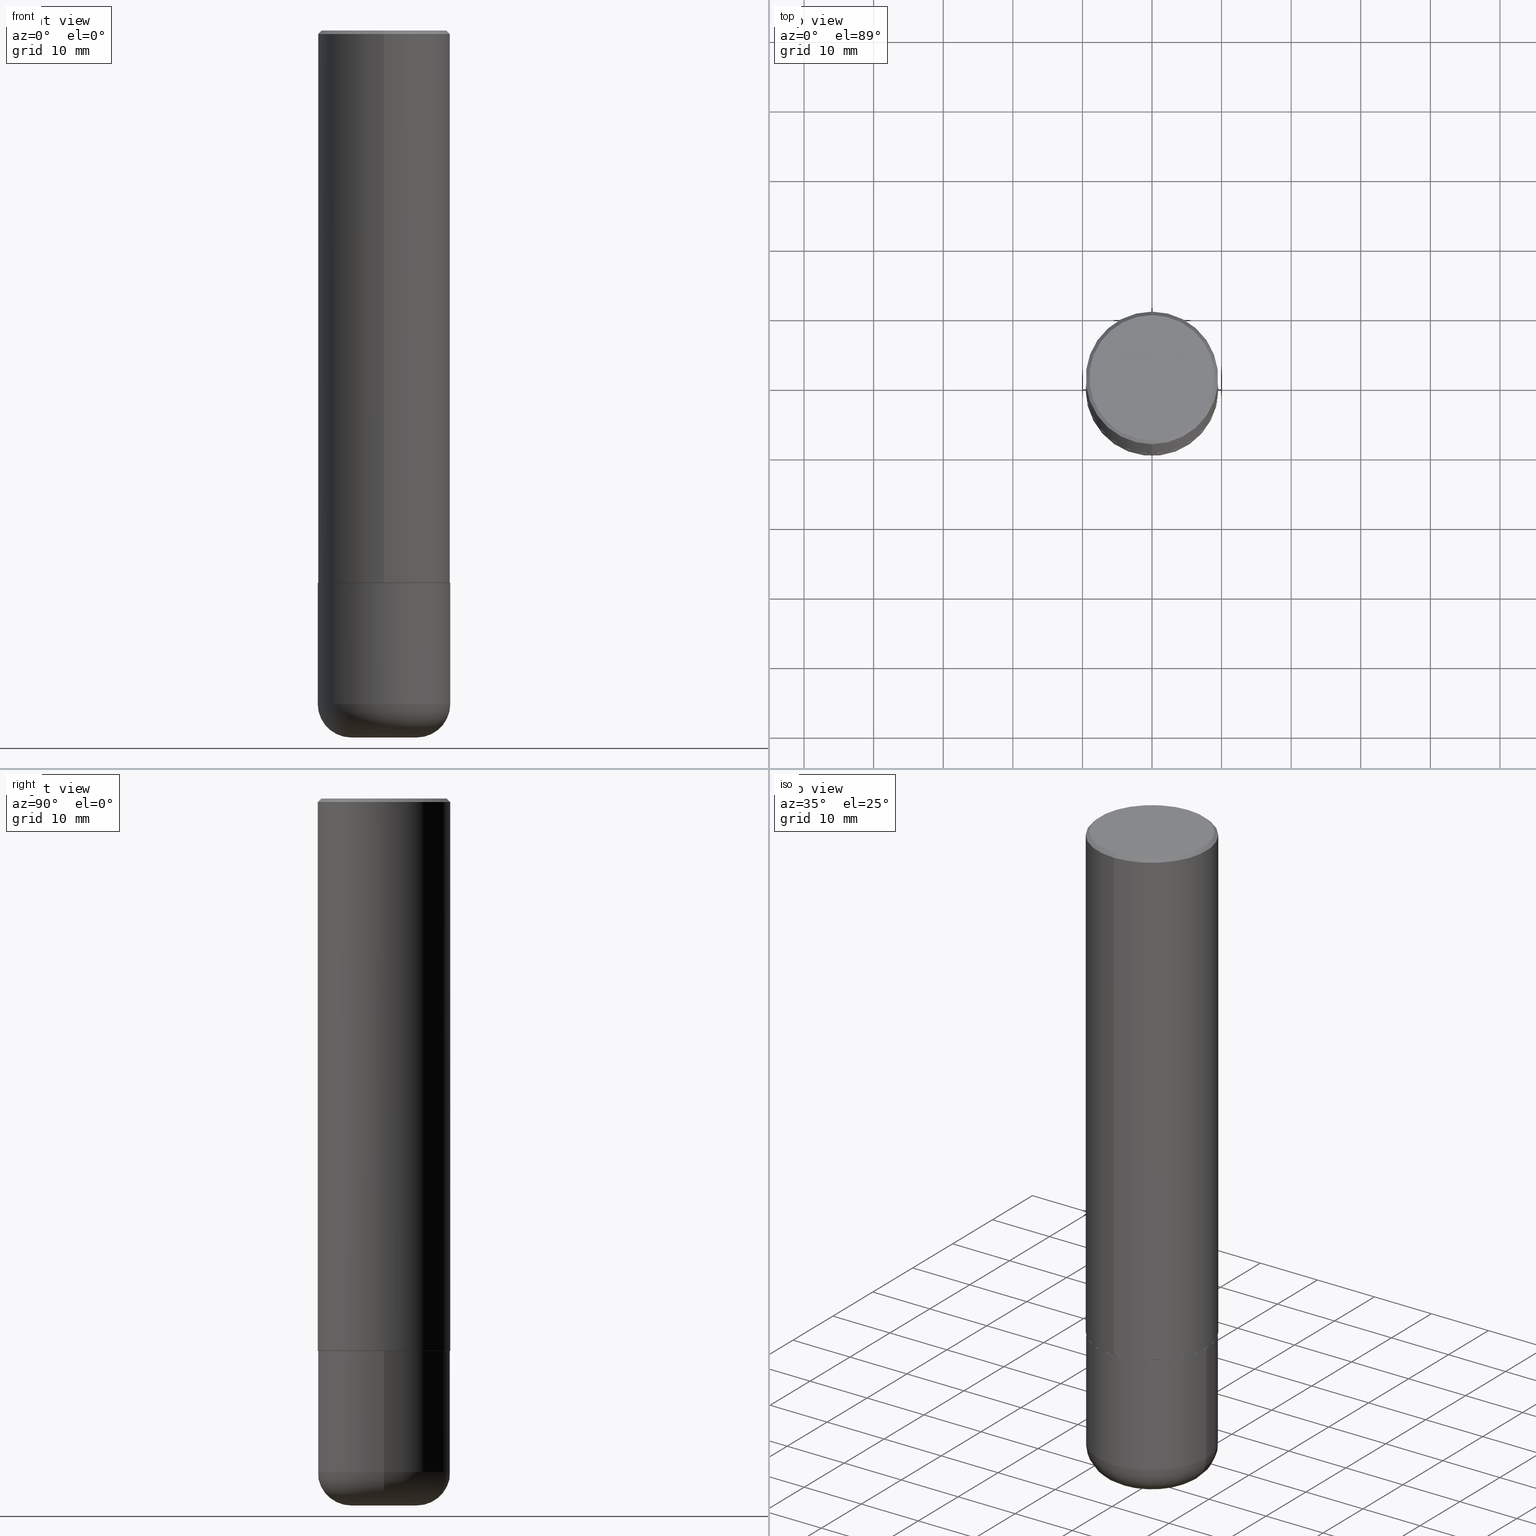
[diagram: canonical four-view strip — front | top / right | iso, engineering-drawing reading convention]
A machine part, canonical four-view strip (front | top / right | iso — engineering-drawing reading convention). The complete STEP part file that produces these views, byte-faithful:
ISO-10303-21;
HEADER;
FILE_DESCRIPTION (( 'STEP AP203' ),
    '1' );
FILE_NAME ('37279.STEP',
    '2024-03-01T23:01:05',
    ( '' ),
    ( '' ),
    'SwSTEP 2.0',
    'SolidWorks 2023',
    '' );
FILE_SCHEMA (( 'CONFIG_CONTROL_DESIGN' ));
ENDSEC;

DATA;
#1 = ORIENTED_EDGE ( 'NONE', *, *, #171, .F. ) ;
#2 = CONICAL_SURFACE ( 'NONE', #184, 0.3749999999999999445, 0.7853981633974477239 ) ;
#3 = DIRECTION ( 'NONE',  ( -2.445996322747269804E-29, 3.490725905101792415E-15, 1.000000000000000000 ) ) ;
#4 = PRODUCT_DEFINITION ( 'UNKNOWN', '', #301, #335 ) ;
#5 = CARTESIAN_POINT ( 'NONE',  ( 0.1850000000000000533, -1.459439199636434413E-14, -3.810000000000000053 ) ) ;
#6 = AXIS2_PLACEMENT_3D ( 'NONE', #102, #212, #210 ) ;
#7 = ADVANCED_FACE ( 'NONE', ( #255 ), #141, .T. ) ;
#8 = DIRECTION ( 'NONE',  ( -2.445468806185136597E-29, 3.491481338843145583E-15, 1.000000000000000000 ) ) ;
#9 = APPROVAL ( #251, 'UNSPECIFIED' ) ;
#10 = CARTESIAN_POINT ( 'NONE',  ( 9.317236151565370389E-29, -1.330254390099238573E-14, -3.810000000000000053 ) ) ;
#11 = MANIFOLD_SOLID_BREP ( 'Body-Move/Copy2[2]', #77 ) ;
#12 = ORIENTED_EDGE ( 'NONE', *, *, #313, .T. ) ;
#13 = AXIS2_PLACEMENT_3D ( 'NONE', #50, #174, #233 ) ;
#14 = CIRCLE ( 'NONE', #241, 0.3750000000000003886 ) ;
#15 = FACE_OUTER_BOUND ( 'NONE', #168, .T. ) ;
#16 = EDGE_CURVE ( 'NONE', #32, #369, #237, .T. ) ;
#17 = DIRECTION ( 'NONE',  ( -2.445996322747269804E-29, 3.490725905101792415E-15, 1.000000000000000000 ) ) ;
#18 = PERSON_AND_ORGANIZATION ( #73, #169 ) ;
#19 = PLANE ( 'NONE',  #122 ) ;
#20 = DIRECTION ( 'NONE',  ( 2.445996322747269804E-29, -3.490725905101792415E-15, -1.000000000000000000 ) ) ;
#21 = AXIS2_PLACEMENT_3D ( 'NONE', #341, #401, #298 ) ;
#22 = APPROVAL_PERSON_ORGANIZATION ( #18, #250, #187 ) ;
#23 = ADVANCED_FACE ( 'NONE', ( #170 ), #113, .T. ) ;
#24 = ORIENTED_EDGE ( 'NONE', *, *, #343, .T. ) ;
#25 = SECURITY_CLASSIFICATION_LEVEL ( 'unclassified' ) ;
#26 = FACE_OUTER_BOUND ( 'NONE', #152, .T. ) ;
#27 = CC_DESIGN_PERSON_AND_ORGANIZATION_ASSIGNMENT ( #120, #209, ( #301 ) ) ;
#28 = VERTEX_POINT ( 'NONE', #86 ) ;
#29 = CARTESIAN_POINT ( 'NONE',  ( 0.000000000000000000, 0.000000000000000000, 0.000000000000000000 ) ) ;
#30 = CARTESIAN_POINT ( 'NONE',  ( 7.642090019328551865E-29, -1.091087918388483118E-14, -3.125000000000000000 ) ) ;
#31 = AXIS2_PLACEMENT_3D ( 'NONE', #143, #231, #396 ) ;
#32 = VERTEX_POINT ( 'NONE', #268 ) ;
#33 = CIRCLE ( 'NONE', #271, 0.3750000000000000555 ) ;
#34 = EDGE_CURVE ( 'NONE', #28, #208, #215, .T. ) ;
#35 = PLANE ( 'NONE',  #116 ) ;
#36 = ORIENTED_EDGE ( 'NONE', *, *, #82, .F. ) ;
#37 = CARTESIAN_POINT ( 'NONE',  ( 7.643738508585217927E-29, -1.090851845344310125E-14, -3.125000000000000000 ) ) ;
#38 = EDGE_LOOP ( 'NONE', ( #386, #246, #1, #181 ) ) ;
#39 = DIRECTION ( 'NONE',  ( 4.937700262164544887E-15, 0.7071067811865446862, -0.7071067811865503483 ) ) ;
#40 = AXIS2_PLACEMENT_3D ( 'NONE', #288, #331, #161 ) ;
#41 = DIRECTION ( 'NONE',  ( 2.445996322747270084E-29, -3.490725905101792021E-15, -1.000000000000000000 ) ) ;
#42 = ORIENTED_EDGE ( 'NONE', *, *, #262, .T. ) ;
#43 = AXIS2_PLACEMENT_3D ( 'NONE', #387, #239, #189 ) ;
#44 = AXIS2_PLACEMENT_3D ( 'NONE', #118, #218, #376 ) ;
#45 = LOCAL_TIME ( 18, 1, 5.000000000000000000, #75 ) ;
#46 = EDGE_LOOP ( 'NONE', ( #172, #160, #322, #155 ) ) ;
#47 = DIRECTION ( 'NONE',  ( -2.445996322747269804E-29, 3.490725905101792415E-15, 1.000000000000000000 ) ) ;
#48 = ADVANCED_FACE ( 'NONE', ( #229 ), #93, .T. ) ;
#49 = VECTOR ( 'NONE', #39, 39.37007874015748143 ) ;
#50 = CARTESIAN_POINT ( 'NONE',  ( 9.781875224740546387E-29, -1.396592535537258233E-14, -4.000000000000000000 ) ) ;
#51 = CC_DESIGN_PERSON_AND_ORGANIZATION_ASSIGNMENT ( #375, #340, ( #413 ) ) ;
#52 = COORDINATED_UNIVERSAL_TIME_OFFSET ( 5, 0, .BEHIND. ) ;
#53 = DIRECTION ( 'NONE',  ( -4.937700262165896205E-15, -0.7071067811867381980, 0.7071067811863568364 ) ) ;
#54 = ORIENTED_EDGE ( 'NONE', *, *, #330, .F. ) ;
#55 = PERSON_AND_ORGANIZATION_ROLE ( 'design_supplier' ) ;
#56 = CARTESIAN_POINT ( 'NONE',  ( 7.642090019328551865E-29, -1.091087918388483118E-14, -3.125000000000000000 ) ) ;
#57 = COORDINATED_UNIVERSAL_TIME_OFFSET ( 5, 0, .BEHIND. ) ;
#58 = CARTESIAN_POINT ( 'NONE',  ( 2.664535259100376486E-15, 0.3750000000000001665, -1.309022214413172797E-15 ) ) ;
#59 = AXIS2_PLACEMENT_3D ( 'NONE', #10, #140, #263 ) ;
#60 = CALENDAR_DATE ( 2024, 1, 3 ) ;
#61 = ORIENTED_EDGE ( 'NONE', *, *, #205, .F. ) ;
#62 = DIRECTION ( 'NONE',  ( 0.000000000000000000, 0.000000000000000000, 1.000000000000000000 ) ) ;
#63 = DIRECTION ( 'NONE',  ( -2.445468806185136877E-29, 3.491481338843145188E-15, 1.000000000000000000 ) ) ;
#64 = ORIENTED_EDGE ( 'NONE', *, *, #171, .T. ) ;
#65 = ADVANCED_FACE ( 'NONE', ( #15 ), #247, .T. ) ;
#66 = CARTESIAN_POINT ( 'NONE',  ( -2.504081769186606638E-15, -0.3549999999999995381, 1.580420516540987376E-15 ) ) ;
#67 = LINE ( 'NONE', #124, #183 ) ;
#68 = ORIENTED_EDGE ( 'NONE', *, *, #248, .F. ) ;
#69 = APPROVAL_DATE_TIME ( #352, #9 ) ;
#70 = CC_DESIGN_PERSON_AND_ORGANIZATION_ASSIGNMENT ( #214, #179, ( #367 ) ) ;
#71 = CYLINDRICAL_SURFACE ( 'NONE', #142, 0.3750000000000001665 ) ;
#72 = EDGE_LOOP ( 'NONE', ( #417, #224, #383, #186 ) ) ;
#73 = PERSON ( 'UNSPECIFIED', 'UNSPECIFIED', 'UNSPECIFIED', ('UNSPECIFIED'), ('UNSPECIFIED'), ('UNSPECIFIED') ) ;
#74 = EDGE_CURVE ( 'NONE', #346, #149, #353, .T. ) ;
#75 = COORDINATED_UNIVERSAL_TIME_OFFSET ( 5, 0, .BEHIND. ) ;
#76 = DIRECTION ( 'NONE',  ( -6.982962677686266711E-15, -1.000000000000000000, 3.491481338843145583E-15 ) ) ;
#77 = CLOSED_SHELL ( 'NONE', ( #361, #399, #232, #294, #103, #23, #139, #373 ) ) ;
#78 = UNCERTAINTY_MEASURE_WITH_UNIT (LENGTH_MEASURE( 1.000000000000000082E-05 ), #323, 'distance_accuracy_value', 'NONE');
#79 = CARTESIAN_POINT ( 'NONE',  ( 7.643738508585217927E-29, -1.090851845344310125E-14, -3.125000000000000000 ) ) ;
#80 = DIMENSIONAL_EXPONENTS ( 1.000000000000000000, 0.000000000000000000, 0.000000000000000000, 0.000000000000000000, 0.000000000000000000, 0.000000000000000000, 0.000000000000000000 ) ;
#81 = DIRECTION ( 'NONE',  ( -2.445996322747269804E-29, 3.490725905101792415E-15, 1.000000000000000000 ) ) ;
#82 = EDGE_CURVE ( 'NONE', #400, #312, #414, .T. ) ;
#83 = AXIS2_PLACEMENT_3D ( 'NONE', #407, #311, #121 ) ;
#84 = LOCAL_TIME ( 18, 1, 5.000000000000000000, #276 ) ;
#85 = CC_DESIGN_PERSON_AND_ORGANIZATION_ASSIGNMENT ( #381, #55, ( #301 ) ) ;
#86 = CARTESIAN_POINT ( 'NONE',  ( 2.618611004132350016E-15, 0.3749999999999998890, -0.02000000000000139513 ) ) ;
#87 = CYLINDRICAL_SURFACE ( 'NONE', #316, 0.3750000000000001665 ) ;
#88 = CIRCLE ( 'NONE', #13, 0.1850000000000000810 ) ;
#89 = CIRCLE ( 'NONE', #40, 0.1899999999999999190 ) ;
#90 = CARTESIAN_POINT ( 'NONE',  ( -2.618611004132351200E-15, -0.3750000000000001665, 1.309022214413172797E-15 ) ) ;
#91 = ORIENTED_EDGE ( 'NONE', *, *, #281, .F. ) ;
#92 = DIRECTION ( 'NONE',  ( -6.982962677686266711E-15, -1.000000000000000000, 3.490725905101792415E-15 ) ) ;
#93 = CYLINDRICAL_SURFACE ( 'NONE', #327, 0.3750000000000001110 ) ;
#94 = CALENDAR_DATE ( 2024, 1, 3 ) ;
#95 = CARTESIAN_POINT ( 'NONE',  ( 2.664535259100415534E-15, 0.3749999999999894529, -3.124000000000001442 ) ) ;
#96 = VERTEX_POINT ( 'NONE', #115 ) ;
#97 = DATE_AND_TIME ( #182, #129 ) ;
#98 = DIRECTION ( 'NONE',  ( -6.982962677686265922E-15, -1.000000000000000000, 3.490725905101792021E-15 ) ) ;
#99 = AXIS2_PLACEMENT_3D ( 'NONE', #302, #17, #264 ) ;
#100 = ORIENTED_EDGE ( 'NONE', *, *, #334, .F. ) ;
#101 = MECHANICAL_CONTEXT ( 'NONE', #320, 'mechanical' ) ;
#102 = CARTESIAN_POINT ( 'NONE',  ( 9.317236151565370389E-29, -1.330254390099238573E-14, -3.810000000000000053 ) ) ;
#103 = ADVANCED_FACE ( 'NONE', ( #259 ), #87, .T. ) ;
#104 = PERSON_AND_ORGANIZATION_ROLE ( 'creator' ) ;
#105 = DIRECTION ( 'NONE',  ( 1.000000000000000000, -6.982962677686266711E-15, 0.000000000000000000 ) ) ;
#106 = ORIENTED_EDGE ( 'NONE', *, *, #110, .F. ) ;
#107 = FACE_OUTER_BOUND ( 'NONE', #310, .T. ) ;
#108 = CC_DESIGN_SECURITY_CLASSIFICATION ( #367, ( #301 ) ) ;
#109 = ORIENTED_EDGE ( 'NONE', *, *, #258, .F. ) ;
#110 = EDGE_CURVE ( 'NONE', #149, #346, #88, .T. ) ;
#111 = DIRECTION ( 'NONE',  ( -6.982962677686266711E-15, -1.000000000000000000, 2.921762560068730595E-15 ) ) ;
#112 = DIRECTION ( 'NONE',  ( -2.445996322747269804E-29, 3.490725905101792415E-15, 1.000000000000000000 ) ) ;
#113 = CONICAL_SURFACE ( 'NONE', #21, 0.3739999999999999991, 0.7853981633977213939 ) ;
#114 = AXIS2_PLACEMENT_3D ( 'NONE', #37, #165, #390 ) ;
#115 = CARTESIAN_POINT ( 'NONE',  ( 0.3750000000000000555, -1.592115490512473417E-14, -3.810000000000000053 ) ) ;
#116 = AXIS2_PLACEMENT_3D ( 'NONE', #344, #159, #191 ) ;
#117 = DATE_AND_TIME ( #94, #339 ) ;
#118 = CARTESIAN_POINT ( 'NONE',  ( 4.891992645494561398E-31, -6.981451810203614264E-17, -0.02000000000000008715 ) ) ;
#119 = ORIENTED_EDGE ( 'NONE', *, *, #365, .T. ) ;
#120 = PERSON_AND_ORGANIZATION ( #73, #169 ) ;
#121 = DIRECTION ( 'NONE',  ( -1.000000000000000000, 6.982962677686265922E-15, -4.876176775795935793E-29 ) ) ;
#122 = AXIS2_PLACEMENT_3D ( 'NONE', #145, #416, #98 ) ;
#123 = APPROVAL_PERSON_ORGANIZATION ( #130, #9, #219 ) ;
#124 = CARTESIAN_POINT ( 'NONE',  ( 0.3750000000000001110, -2.618611004132350411E-15, 1.828566290923476483E-29 ) ) ;
#125 = ORIENTED_EDGE ( 'NONE', *, *, #211, .T. ) ;
#126 = DIRECTION ( 'NONE',  ( 6.982962677686266711E-15, 1.000000000000000000, -3.494488891895537218E-15 ) ) ;
#127 = EDGE_CURVE ( 'NONE', #312, #400, #300, .T. ) ;
#128 = AXIS2_PLACEMENT_3D ( 'NONE', #29, #282, #154 ) ;
#129 = LOCAL_TIME ( 18, 1, 5.000000000000000000, #235 ) ;
#130 = PERSON_AND_ORGANIZATION ( #73, #169 ) ;
#131 = DIRECTION ( 'NONE',  ( 1.000000000000000000, -6.982962677686264344E-15, 0.000000000000000000 ) ) ;
#132 = DIRECTION ( 'NONE',  ( 2.445996322747269804E-29, -3.490725905101792415E-15, -1.000000000000000000 ) ) ;
#133 = EDGE_CURVE ( 'NONE', #369, #208, #371, .T. ) ;
#134 = ORIENTED_EDGE ( 'NONE', *, *, #164, .T. ) ;
#135 = VECTOR ( 'NONE', #350, 39.37007874015748143 ) ;
#136 = AXIS2_PLACEMENT_3D ( 'NONE', #197, #112, #111 ) ;
#137 = VERTEX_POINT ( 'NONE', #177 ) ;
#138 = DIRECTION ( 'NONE',  ( 1.000000000000000000, -6.982962677686265922E-15, 4.876176775795935793E-29 ) ) ;
#139 = ADVANCED_FACE ( 'NONE', ( #304 ), #19, .F. ) ;
#140 = DIRECTION ( 'NONE',  ( -2.445468806185136597E-29, 3.491481338843145583E-15, 1.000000000000000000 ) ) ;
#141 = TOROIDAL_SURFACE ( 'NONE', #59, 0.1850000000000000533, 0.1899999999999999467 ) ;
#142 = AXIS2_PLACEMENT_3D ( 'NONE', #285, #279, #92 ) ;
#143 = CARTESIAN_POINT ( 'NONE',  ( 9.317236151565370389E-29, -1.330254390099238573E-14, -3.810000000000000053 ) ) ;
#144 = APPROVAL_STATUS ( 'not_yet_approved' ) ;
#145 = CARTESIAN_POINT ( 'NONE',  ( 7.643738508585217927E-29, -1.090851845344310125E-14, -3.125000000000000000 ) ) ;
#146 = ADVANCED_FACE ( 'NONE', ( #216 ), #35, .F. ) ;
#147 = CARTESIAN_POINT ( 'NONE',  ( -0.3750000000000000555, -1.063800864189200846E-14, -3.810000000000000053 ) ) ;
#148 = APPROVAL ( #348, 'UNSPECIFIED' ) ;
#149 = VERTEX_POINT ( 'NONE', #188 ) ;
#150 = PERSON_AND_ORGANIZATION ( #73, #169 ) ;
#151 = FACE_OUTER_BOUND ( 'NONE', #38, .T. ) ;
#152 = EDGE_LOOP ( 'NONE', ( #308, #158, #119, #292 ) ) ;
#153 = APPROVAL_DATE_TIME ( #97, #250 ) ;
#154 = DIRECTION ( 'NONE',  ( 1.000000000000000000, -6.982962677686265922E-15, 4.876176775795935793E-29 ) ) ;
#155 = ORIENTED_EDGE ( 'NONE', *, *, #34, .F. ) ;
#156 = APPROVAL_ROLE ( '' ) ;
#157 = DIRECTION ( 'NONE',  ( -2.445468806185136597E-29, 3.491481338843145583E-15, 1.000000000000000000 ) ) ;
#158 = ORIENTED_EDGE ( 'NONE', *, *, #127, .F. ) ;
#159 = DIRECTION ( 'NONE',  ( 2.438088387897960049E-29, -3.491481338843145188E-15, -1.000000000000000000 ) ) ;
#160 = ORIENTED_EDGE ( 'NONE', *, *, #391, .T. ) ;
#161 = DIRECTION ( 'NONE',  ( -1.000000000000000000, 7.105427357601001070E-15, 0.000000000000000000 ) ) ;
#162 = ADVANCED_BREP_SHAPE_REPRESENTATION ( '37279', ( #290, #11, #404 ), #394 ) ;
#163 = DIRECTION ( 'NONE',  ( 6.982962677686265922E-15, 1.000000000000000000, -3.490725905101792021E-15 ) ) ;
#164 = EDGE_CURVE ( 'NONE', #400, #208, #385, .T. ) ;
#165 = DIRECTION ( 'NONE',  ( -2.445996322747269804E-29, 3.490725905101792415E-15, 1.000000000000000000 ) ) ;
#166 = EDGE_LOOP ( 'NONE', ( #36, #134, #200, #332 ) ) ;
#167 = FACE_OUTER_BOUND ( 'NONE', #190, .T. ) ;
#168 = EDGE_LOOP ( 'NONE', ( #408, #410, #24, #61 ) ) ;
#169 = ORGANIZATION ( 'UNSPECIFIED', 'UNSPECIFIED', '' ) ;
#170 = FACE_OUTER_BOUND ( 'NONE', #72, .T. ) ;
#171 = EDGE_CURVE ( 'NONE', #137, #234, #403, .T. ) ;
#172 = ORIENTED_EDGE ( 'NONE', *, *, #286, .F. ) ;
#173 = DIRECTION ( 'NONE',  ( 1.000000000000000000, -6.982962677686272233E-15, 0.000000000000000000 ) ) ;
#174 = DIRECTION ( 'NONE',  ( -2.445468806185136597E-29, 3.491481338843145583E-15, 1.000000000000000000 ) ) ;
#175 = DATE_AND_TIME ( #60, #347 ) ;
#176 = ADVANCED_FACE ( 'NONE', ( #349 ), #412, .T. ) ;
#177 = CARTESIAN_POINT ( 'NONE',  ( 0.3750000000000000555, -1.352949018801718119E-14, -3.125000000000000000 ) ) ;
#178 = VERTEX_POINT ( 'NONE', #382 ) ;
#179 = PERSON_AND_ORGANIZATION_ROLE ( 'classification_officer' ) ;
#180 = CARTESIAN_POINT ( 'NONE',  ( -2.572686749164323153E-15, -0.3750000000000000555, -0.01999999999999877570 ) ) ;
#181 = ORIENTED_EDGE ( 'NONE', *, *, #194, .F. ) ;
#182 = CALENDAR_DATE ( 2024, 1, 3 ) ;
#183 = VECTOR ( 'NONE', #63, 39.37007874015748143 ) ;
#184 = AXIS2_PLACEMENT_3D ( 'NONE', #242, #20, #126 ) ;
#185 = DIRECTION ( 'NONE',  ( -2.445996322747270084E-29, 3.490725905101792021E-15, 1.000000000000000000 ) ) ;
#186 = ORIENTED_EDGE ( 'NONE', *, *, #391, .F. ) ;
#187 = APPROVAL_ROLE ( '' ) ;
#188 = CARTESIAN_POINT ( 'NONE',  ( 0.1850000000000000810, -1.525777345074454388E-14, -4.000000000000000000 ) ) ;
#189 = DIRECTION ( 'NONE',  ( -6.982962677686265922E-15, -1.000000000000000000, 2.913971193241877611E-15 ) ) ;
#190 = EDGE_LOOP ( 'NONE', ( #228, #355 ) ) ;
#191 = DIRECTION ( 'NONE',  ( -1.000000000000000000, 6.982962677686265922E-15, -4.876176775795935793E-29 ) ) ;
#192 = VECTOR ( 'NONE', #314, 39.37007874015748143 ) ;
#193 = ORIENTED_EDGE ( 'NONE', *, *, #133, .F. ) ;
#194 = EDGE_CURVE ( 'NONE', #96, #137, #67, .T. ) ;
#195 = DIRECTION ( 'NONE',  ( -2.445468806185136877E-29, 3.491481338843145188E-15, 1.000000000000000000 ) ) ;
#196 = ORIENTED_EDGE ( 'NONE', *, *, #343, .F. ) ;
#197 = CARTESIAN_POINT ( 'NONE',  ( 7.643738508585217927E-29, -1.090851845344310125E-14, -3.125000000000000000 ) ) ;
#198 = CONICAL_SURFACE ( 'NONE', #136, 0.3739999999999999991, 0.7853981633977213939 ) ;
#199 = DIRECTION ( 'NONE',  ( -6.982962677686266711E-15, -1.000000000000000000, 2.921762560068730595E-15 ) ) ;
#200 = ORIENTED_EDGE ( 'NONE', *, *, #281, .T. ) ;
#201 = DIRECTION ( 'NONE',  ( -2.445468806185136597E-29, 3.491481338843145583E-15, 1.000000000000000000 ) ) ;
#202 = ORIENTED_EDGE ( 'NONE', *, *, #286, .T. ) ;
#203 = CARTESIAN_POINT ( 'NONE',  ( 4.891992645494561398E-31, -6.981451810203614264E-17, -0.02000000000000008715 ) ) ;
#204 = CARTESIAN_POINT ( 'NONE',  ( 0.000000000000000000, 0.000000000000000000, 0.000000000000000000 ) ) ;
#205 = EDGE_CURVE ( 'NONE', #213, #96, #222, .T. ) ;
#206 = CC_DESIGN_APPROVAL ( #250, ( #301 ) ) ;
#207 = DIRECTION ( 'NONE',  ( -2.445996322747270084E-29, 3.490725905101792021E-15, 1.000000000000000000 ) ) ;
#208 = VERTEX_POINT ( 'NONE', #418 ) ;
#209 = PERSON_AND_ORGANIZATION_ROLE ( 'creator' ) ;
#210 = DIRECTION ( 'NONE',  ( 1.000000000000000000, -6.982962677686265922E-15, 0.000000000000000000 ) ) ;
#211 = EDGE_CURVE ( 'NONE', #369, #244, #221, .T. ) ;
#212 = DIRECTION ( 'NONE',  ( -2.445468806185136597E-29, 3.491481338843145583E-15, 1.000000000000000000 ) ) ;
#213 = VERTEX_POINT ( 'NONE', #147 ) ;
#214 = PERSON_AND_ORGANIZATION ( #73, #169 ) ;
#215 = CIRCLE ( 'NONE', #278, 0.3749999999999999445 ) ;
#216 = FACE_OUTER_BOUND ( 'NONE', #319, .T. ) ;
#217 = CARTESIAN_POINT ( 'NONE',  ( 2.657429831742851208E-15, 0.3739999999999891189, -3.125000000000001332 ) ) ;
#218 = DIRECTION ( 'NONE',  ( -2.445996322747269804E-29, 3.490725905101792415E-15, 1.000000000000000000 ) ) ;
#219 = APPROVAL_ROLE ( '' ) ;
#220 = ADVANCED_FACE ( 'NONE', ( #151 ), #245, .T. ) ;
#221 = CIRCLE ( 'NONE', #43, 0.3750000000000003886 ) ;
#222 = CIRCLE ( 'NONE', #402, 0.3750000000000001110 ) ;
#223 = CC_DESIGN_APPROVAL ( #148, ( #4 ) ) ;
#224 = ORIENTED_EDGE ( 'NONE', *, *, #330, .T. ) ;
#225 = DATE_TIME_ROLE ( 'classification_date' ) ;
#226 = AXIS2_PLACEMENT_3D ( 'NONE', #79, #3, #199 ) ;
#227 = LINE ( 'NONE', #324, #49 ) ;
#228 = ORIENTED_EDGE ( 'NONE', *, *, #127, .T. ) ;
#229 = FACE_OUTER_BOUND ( 'NONE', #405, .T. ) ;
#230 = AXIS2_PLACEMENT_3D ( 'NONE', #363, #41, #163 ) ;
#231 = DIRECTION ( 'NONE',  ( -2.445468806185136597E-29, 3.491481338843145583E-15, 1.000000000000000000 ) ) ;
#232 = ADVANCED_FACE ( 'NONE', ( #378 ), #2, .T. ) ;
#233 = DIRECTION ( 'NONE',  ( 1.000000000000000000, -6.982962677686272233E-15, 0.000000000000000000 ) ) ;
#234 = VERTEX_POINT ( 'NONE', #318 ) ;
#235 = COORDINATED_UNIVERSAL_TIME_OFFSET ( 5, 0, .BEHIND. ) ;
#236 = CIRCLE ( 'NONE', #226, 0.3739999999999999991 ) ;
#237 = LINE ( 'NONE', #336, #379 ) ;
#238 = ORIENTED_EDGE ( 'NONE', *, *, #258, .T. ) ;
#239 = DIRECTION ( 'NONE',  ( -2.445996322747269804E-29, 3.490725905101792415E-15, 1.000000000000000000 ) ) ;
#240 = DATE_AND_TIME ( #411, #84 ) ;
#241 = AXIS2_PLACEMENT_3D ( 'NONE', #291, #81, #257 ) ;
#242 = CARTESIAN_POINT ( 'NONE',  ( 4.891992645494561398E-31, -6.981451810203614264E-17, -0.02000000000000008715 ) ) ;
#243 = DIRECTION ( 'NONE',  ( 1.000000000000000000, -6.982962677686265922E-15, 0.000000000000000000 ) ) ;
#244 = VERTEX_POINT ( 'NONE', #95 ) ;
#245 = CYLINDRICAL_SURFACE ( 'NONE', #128, 0.3750000000000001110 ) ;
#246 = ORIENTED_EDGE ( 'NONE', *, *, #334, .T. ) ;
#247 = TOROIDAL_SURFACE ( 'NONE', #31, 0.1850000000000000533, 0.1899999999999999467 ) ;
#248 = EDGE_CURVE ( 'NONE', #96, #213, #366, .T. ) ;
#249 = DIRECTION ( 'NONE',  ( 6.982962677686266711E-15, 1.000000000000000000, -3.494488891895537218E-15 ) ) ;
#250 = APPROVAL ( #144, 'UNSPECIFIED' ) ;
#251 = APPROVAL_STATUS ( 'not_yet_approved' ) ;
#252 =( NAMED_UNIT ( * ) SI_UNIT ( $, .STERADIAN. ) SOLID_ANGLE_UNIT ( ) );
#253 = CARTESIAN_POINT ( 'NONE',  ( -0.1850000000000000810, -1.164471496805420174E-14, -4.000000000000000000 ) ) ;
#254 = AXIS2_PLACEMENT_3D ( 'NONE', #370, #201, #173 ) ;
#255 = FACE_OUTER_BOUND ( 'NONE', #374, .T. ) ;
#256 = CIRCLE ( 'NONE', #44, 0.3749999999999999445 ) ;
#257 = DIRECTION ( 'NONE',  ( -6.982962677686265922E-15, -1.000000000000000000, 2.913971193241877611E-15 ) ) ;
#258 = EDGE_CURVE ( 'NONE', #234, #137, #33, .T. ) ;
#259 = FACE_OUTER_BOUND ( 'NONE', #46, .T. ) ;
#260 = AXIS2_PLACEMENT_3D ( 'NONE', #333, #47, #398 ) ;
#261 = CIRCLE ( 'NONE', #114, 0.3739999999999999991 ) ;
#262 = EDGE_CURVE ( 'NONE', #178, #244, #272, .T. ) ;
#263 = DIRECTION ( 'NONE',  ( 1.000000000000000000, -6.982962677686263555E-15, 4.883557194083111219E-29 ) ) ;
#264 = DIRECTION ( 'NONE',  ( -6.982962677686266711E-15, -1.000000000000000000, 3.490725905101792415E-15 ) ) ;
#265 = EDGE_LOOP ( 'NONE', ( #12, #42, #315, #305 ) ) ;
#266 = APPROVAL_DATE_TIME ( #117, #148 ) ;
#267 =( LENGTH_UNIT ( ) NAMED_UNIT ( * ) SI_UNIT ( $, .METRE. ) );
#268 = CARTESIAN_POINT ( 'NONE',  ( -2.611628041454587088E-15, -0.3740000000000109348, -3.124999999999999112 ) ) ;
#269 = ORIENTED_EDGE ( 'NONE', *, *, #194, .T. ) ;
#270 = CC_DESIGN_APPROVAL ( #9, ( #367 ) ) ;
#271 = AXIS2_PLACEMENT_3D ( 'NONE', #56, #307, #105 ) ;
#272 = LINE ( 'NONE', #217, #192 ) ;
#273 = PRODUCT_RELATED_PRODUCT_CATEGORY ( 'detail', '', ( #413 ) ) ;
#274 = CARTESIAN_POINT ( 'NONE',  ( 4.891992645494561398E-31, -6.981451810203614264E-17, -0.02000000000000008715 ) ) ;
#275 = EDGE_LOOP ( 'NONE', ( #342, #54 ) ) ;
#276 = COORDINATED_UNIVERSAL_TIME_OFFSET ( 5, 0, .BEHIND. ) ;
#277 = DIRECTION ( 'NONE',  ( 1.000000000000000000, -6.982962677686266711E-15, 0.000000000000000000 ) ) ;
#278 = AXIS2_PLACEMENT_3D ( 'NONE', #203, #299, #297 ) ;
#279 = DIRECTION ( 'NONE',  ( -2.445996322747269804E-29, 3.490725905101792415E-15, 1.000000000000000000 ) ) ;
#280 = CONICAL_SURFACE ( 'NONE', #372, 0.3749999999999999445, 0.7853981633974477239 ) ;
#281 = EDGE_CURVE ( 'NONE', #208, #28, #256, .T. ) ;
#282 = DIRECTION ( 'NONE',  ( -2.445468806185136597E-29, 3.491481338843145583E-15, 1.000000000000000000 ) ) ;
#283 = EDGE_LOOP ( 'NONE', ( #106, #397 ) ) ;
#284 = ORIENTED_EDGE ( 'NONE', *, *, #205, .T. ) ;
#285 = CARTESIAN_POINT ( 'NONE',  ( 0.000000000000000000, 0.000000000000000000, 0.000000000000000000 ) ) ;
#286 = EDGE_CURVE ( 'NONE', #244, #28, #345, .T. ) ;
#287 = CALENDAR_DATE ( 2024, 1, 3 ) ;
#288 = CARTESIAN_POINT ( 'NONE',  ( -0.1850000000000000533, -1.198803983983620001E-14, -3.810000000000000053 ) ) ;
#289 = VECTOR ( 'NONE', #185, 39.37007874015748143 ) ;
#290 = MANIFOLD_SOLID_BREP ( 'Body-Move/Copy2[1]', #338 ) ;
#291 = CARTESIAN_POINT ( 'NONE',  ( 7.641292512262471991E-29, -1.090502772753799986E-14, -3.124000000000000554 ) ) ;
#292 = ORIENTED_EDGE ( 'NONE', *, *, #34, .T. ) ;
#293 = CARTESIAN_POINT ( 'NONE',  ( -0.3750000000000001110, 2.664535259100376486E-15, -1.844600658845590159E-29 ) ) ;
#294 = ADVANCED_FACE ( 'NONE', ( #26 ), #280, .T. ) ;
#295 = PRODUCT_DEFINITION_SHAPE ( 'NONE', 'NONE',  #4 ) ;
#296 = VECTOR ( 'NONE', #207, 39.37007874015748143 ) ;
#297 = DIRECTION ( 'NONE',  ( -6.982962677686266711E-15, -1.000000000000000000, 3.494488891895537218E-15 ) ) ;
#298 = DIRECTION ( 'NONE',  ( -6.982962677686266711E-15, -1.000000000000000000, 2.921762560068730595E-15 ) ) ;
#299 = DIRECTION ( 'NONE',  ( -2.445996322747269804E-29, 3.490725905101792415E-15, 1.000000000000000000 ) ) ;
#300 = CIRCLE ( 'NONE', #99, 0.3549999999999995381 ) ;
#301 = PRODUCT_DEFINITION_FORMATION_WITH_SPECIFIED_SOURCE ( 'ANY', '', #413, .NOT_KNOWN. ) ;
#302 = CARTESIAN_POINT ( 'NONE',  ( -8.346053035564447328E-45, 1.191080430729187510E-30, 3.412128202298525830E-16 ) ) ;
#303 = DATE_TIME_ROLE ( 'creation_date' ) ;
#304 = FACE_OUTER_BOUND ( 'NONE', #275, .T. ) ;
#305 = ORIENTED_EDGE ( 'NONE', *, *, #16, .F. ) ;
#306 = PERSON_AND_ORGANIZATION ( #73, #169 ) ;
#307 = DIRECTION ( 'NONE',  ( -2.445468806185136597E-29, 3.491481338843145583E-15, 1.000000000000000000 ) ) ;
#308 = ORIENTED_EDGE ( 'NONE', *, *, #164, .F. ) ;
#309 = DIRECTION ( 'NONE',  ( -2.445468806185136597E-29, 3.491481338843145583E-15, 1.000000000000000000 ) ) ;
#310 = EDGE_LOOP ( 'NONE', ( #125, #202, #91, #193 ) ) ;
#311 = DIRECTION ( 'NONE',  ( 2.438088387897960049E-29, -3.491481338843145188E-15, -1.000000000000000000 ) ) ;
#312 = VERTEX_POINT ( 'NONE', #389 ) ;
#313 = EDGE_CURVE ( 'NONE', #32, #178, #261, .T. ) ;
#314 = DIRECTION ( 'NONE',  ( 5.024295867789434219E-15, 0.7071067811867430830, 0.7071067811863519514 ) ) ;
#315 = ORIENTED_EDGE ( 'NONE', *, *, #211, .F. ) ;
#316 = AXIS2_PLACEMENT_3D ( 'NONE', #204, #395, #337 ) ;
#317 = VECTOR ( 'NONE', #195, 39.37007874015748143 ) ;
#318 = CARTESIAN_POINT ( 'NONE',  ( -0.3750000000000000555, -9.442176283338231969E-15, -3.125000000000000000 ) ) ;
#319 = EDGE_LOOP ( 'NONE', ( #64, #238 ) ) ;
#320 = APPLICATION_CONTEXT ( 'configuration controlled 3d designs of mechanical parts and assemblies' ) ;
#321 = FACE_OUTER_BOUND ( 'NONE', #265, .T. ) ;
#322 = ORIENTED_EDGE ( 'NONE', *, *, #133, .T. ) ;
#323 =( CONVERSION_BASED_UNIT ( 'INCH', #358 ) LENGTH_UNIT ( ) NAMED_UNIT ( #80 ) );
#324 = CARTESIAN_POINT ( 'NONE',  ( 2.618611004132350016E-15, 0.3749999999999998890, -0.02000000000000139513 ) ) ;
#325 = CC_DESIGN_PERSON_AND_ORGANIZATION_ASSIGNMENT ( #306, #104, ( #4 ) ) ;
#326 = APPLICATION_PROTOCOL_DEFINITION ( 'international standard', 'config_control_design', 1994, #320 ) ;
#327 = AXIS2_PLACEMENT_3D ( 'NONE', #368, #8, #138 ) ;
#328 = CIRCLE ( 'NONE', #393, 0.1899999999999999190 ) ;
#329 = LINE ( 'NONE', #293, #317 ) ;
#330 = EDGE_CURVE ( 'NONE', #178, #32, #236, .T. ) ;
#331 = DIRECTION ( 'NONE',  ( 7.105427357601001859E-15, 1.000000000000000000, -3.491481338843145583E-15 ) ) ;
#332 = ORIENTED_EDGE ( 'NONE', *, *, #365, .F. ) ;
#333 = CARTESIAN_POINT ( 'NONE',  ( -8.346053035564447328E-45, 1.191080430729187510E-30, 3.412128202298525830E-16 ) ) ;
#334 = EDGE_CURVE ( 'NONE', #213, #234, #329, .T. ) ;
#335 = DESIGN_CONTEXT ( 'detailed design', #406, 'design' ) ;
#336 = CARTESIAN_POINT ( 'NONE',  ( -2.611628041454587088E-15, -0.3740000000000109348, -3.124999999999999112 ) ) ;
#337 = DIRECTION ( 'NONE',  ( -6.982962677686266711E-15, -1.000000000000000000, 3.490725905101792415E-15 ) ) ;
#338 = CLOSED_SHELL ( 'NONE', ( #220, #7, #146, #48, #65, #176 ) ) ;
#339 = LOCAL_TIME ( 18, 1, 5.000000000000000000, #52 ) ;
#340 = PERSON_AND_ORGANIZATION_ROLE ( 'design_owner' ) ;
#341 = CARTESIAN_POINT ( 'NONE',  ( 7.643738508585217927E-29, -1.090851845344310125E-14, -3.125000000000000000 ) ) ;
#342 = ORIENTED_EDGE ( 'NONE', *, *, #313, .F. ) ;
#343 = EDGE_CURVE ( 'NONE', #149, #96, #328, .T. ) ;
#344 = CARTESIAN_POINT ( 'NONE',  ( 7.642090019328551865E-29, -1.091087918388483118E-14, -3.125000000000000000 ) ) ;
#345 = LINE ( 'NONE', #58, #289 ) ;
#346 = VERTEX_POINT ( 'NONE', #253 ) ;
#347 = LOCAL_TIME ( 18, 1, 5.000000000000000000, #57 ) ;
#348 = APPROVAL_STATUS ( 'not_yet_approved' ) ;
#349 = FACE_OUTER_BOUND ( 'NONE', #283, .T. ) ;
#350 = DIRECTION ( 'NONE',  ( -4.851104656540961119E-15, -0.7071067811865495711, -0.7071067811865454633 ) ) ;
#351 = ORIENTED_EDGE ( 'NONE', *, *, #110, .T. ) ;
#352 = DATE_AND_TIME ( #287, #45 ) ;
#353 = CIRCLE ( 'NONE', #254, 0.1850000000000000810 ) ;
#354 = CARTESIAN_POINT ( 'NONE',  ( -2.618611004132276258E-15, -0.3750000000000113243, -3.123999999999999222 ) ) ;
#355 = ORIENTED_EDGE ( 'NONE', *, *, #82, .T. ) ;
#356 = CC_DESIGN_DATE_AND_TIME_ASSIGNMENT ( #175, #303, ( #4 ) ) ;
#357 = PLANE ( 'NONE',  #230 ) ;
#358 = LENGTH_MEASURE_WITH_UNIT ( LENGTH_MEASURE( 0.02539999999999999897 ), #267 );
#359 = AXIS2_PLACEMENT_3D ( 'NONE', #30, #157, #277 ) ;
#360 = APPROVAL_PERSON_ORGANIZATION ( #150, #148, #156 ) ;
#361 = ADVANCED_FACE ( 'NONE', ( #321 ), #198, .T. ) ;
#362 =( NAMED_UNIT ( * ) PLANE_ANGLE_UNIT ( ) SI_UNIT ( $, .RADIAN. ) );
#363 = CARTESIAN_POINT ( 'NONE',  ( 2.478951750578621448E-15, 0.3549999999999995381, -1.068601286196208575E-15 ) ) ;
#364 = CC_DESIGN_DATE_AND_TIME_ASSIGNMENT ( #240, #225, ( #367 ) ) ;
#365 = EDGE_CURVE ( 'NONE', #312, #28, #227, .T. ) ;
#366 = CIRCLE ( 'NONE', #6, 0.3750000000000001110 ) ;
#367 = SECURITY_CLASSIFICATION ( '', '', #25 ) ;
#368 = CARTESIAN_POINT ( 'NONE',  ( 0.000000000000000000, 0.000000000000000000, 0.000000000000000000 ) ) ;
#369 = VERTEX_POINT ( 'NONE', #354 ) ;
#370 = CARTESIAN_POINT ( 'NONE',  ( 9.781875224740546387E-29, -1.396592535537258233E-14, -4.000000000000000000 ) ) ;
#371 = LINE ( 'NONE', #90, #296 ) ;
#372 = AXIS2_PLACEMENT_3D ( 'NONE', #274, #132, #249 ) ;
#373 = ADVANCED_FACE ( 'NONE', ( #167 ), #357, .F. ) ;
#374 = EDGE_LOOP ( 'NONE', ( #351, #380, #68, #196 ) ) ;
#375 = PERSON_AND_ORGANIZATION ( #73, #169 ) ;
#376 = DIRECTION ( 'NONE',  ( -6.982962677686266711E-15, -1.000000000000000000, 3.494488891895537218E-15 ) ) ;
#377 = DIRECTION ( 'NONE',  ( 1.000000000000000000, 0.000000000000000000, 0.000000000000000000 ) ) ;
#378 = FACE_OUTER_BOUND ( 'NONE', #166, .T. ) ;
#379 = VECTOR ( 'NONE', #53, 39.37007874015748143 ) ;
#380 = ORIENTED_EDGE ( 'NONE', *, *, #388, .T. ) ;
#381 = PERSON_AND_ORGANIZATION ( #73, #169 ) ;
#382 = CARTESIAN_POINT ( 'NONE',  ( 2.660982545421652501E-15, 0.3739999999999891189, -3.125000000000001332 ) ) ;
#383 = ORIENTED_EDGE ( 'NONE', *, *, #16, .T. ) ;
#384 = APPLICATION_PROTOCOL_DEFINITION ( 'international standard', 'config_control_design', 1994, #406 ) ;
#385 = LINE ( 'NONE', #180, #135 ) ;
#386 = ORIENTED_EDGE ( 'NONE', *, *, #248, .T. ) ;
#387 = CARTESIAN_POINT ( 'NONE',  ( 7.641292512262471991E-29, -1.090502772753799986E-14, -3.124000000000000554 ) ) ;
#388 = EDGE_CURVE ( 'NONE', #346, #213, #89, .T. ) ;
#389 = CARTESIAN_POINT ( 'NONE',  ( 2.548781377355485929E-15, 0.3549999999999995381, -8.979948760812821111E-16 ) ) ;
#390 = DIRECTION ( 'NONE',  ( -6.982962677686266711E-15, -1.000000000000000000, 2.921762560068730595E-15 ) ) ;
#391 = EDGE_CURVE ( 'NONE', #244, #369, #14, .T. ) ;
#392 = SHAPE_DEFINITION_REPRESENTATION ( #295, #162 ) ;
#393 = AXIS2_PLACEMENT_3D ( 'NONE', #5, #76, #131 ) ;
#394 =( GEOMETRIC_REPRESENTATION_CONTEXT ( 3 ) GLOBAL_UNCERTAINTY_ASSIGNED_CONTEXT ( ( #78 ) ) GLOBAL_UNIT_ASSIGNED_CONTEXT ( ( #323, #362, #252 ) ) REPRESENTATION_CONTEXT ( 'NONE', 'WORKASPACE' ) );
#395 = DIRECTION ( 'NONE',  ( -2.445996322747269804E-29, 3.490725905101792415E-15, 1.000000000000000000 ) ) ;
#396 = DIRECTION ( 'NONE',  ( 1.000000000000000000, -6.982962677686263555E-15, 4.883557194083111219E-29 ) ) ;
#397 = ORIENTED_EDGE ( 'NONE', *, *, #74, .F. ) ;
#398 = DIRECTION ( 'NONE',  ( -6.982962677686266711E-15, -1.000000000000000000, 3.490725905101792415E-15 ) ) ;
#399 = ADVANCED_FACE ( 'NONE', ( #107 ), #71, .T. ) ;
#400 = VERTEX_POINT ( 'NONE', #66 ) ;
#401 = DIRECTION ( 'NONE',  ( -2.445996322747269804E-29, 3.490725905101792415E-15, 1.000000000000000000 ) ) ;
#402 = AXIS2_PLACEMENT_3D ( 'NONE', #409, #309, #243 ) ;
#403 = CIRCLE ( 'NONE', #359, 0.3750000000000000555 ) ;
#404 = AXIS2_PLACEMENT_3D ( 'NONE', #415, #62, #377 ) ;
#405 = EDGE_LOOP ( 'NONE', ( #100, #284, #269, #109 ) ) ;
#406 = APPLICATION_CONTEXT ( 'configuration controlled 3d designs of mechanical parts and assemblies' ) ;
#407 = CARTESIAN_POINT ( 'NONE',  ( 9.781875224740546387E-29, -1.396592535537258233E-14, -4.000000000000000000 ) ) ;
#408 = ORIENTED_EDGE ( 'NONE', *, *, #388, .F. ) ;
#409 = CARTESIAN_POINT ( 'NONE',  ( 9.317236151565370389E-29, -1.330254390099238573E-14, -3.810000000000000053 ) ) ;
#410 = ORIENTED_EDGE ( 'NONE', *, *, #74, .T. ) ;
#411 = CALENDAR_DATE ( 2024, 1, 3 ) ;
#412 = PLANE ( 'NONE',  #83 ) ;
#413 = PRODUCT ( '37279', '37279', '', ( #101 ) ) ;
#414 = CIRCLE ( 'NONE', #260, 0.3549999999999995381 ) ;
#415 = CARTESIAN_POINT ( 'NONE',  ( 0.000000000000000000, 0.000000000000000000, 0.000000000000000000 ) ) ;
#416 = DIRECTION ( 'NONE',  ( -2.445996322747270084E-29, 3.490725905101792021E-15, 1.000000000000000000 ) ) ;
#417 = ORIENTED_EDGE ( 'NONE', *, *, #262, .F. ) ;
#418 = CARTESIAN_POINT ( 'NONE',  ( -2.572686749164323153E-15, -0.3750000000000000555, -0.01999999999999877570 ) ) ;
ENDSEC;
END-ISO-10303-21;
